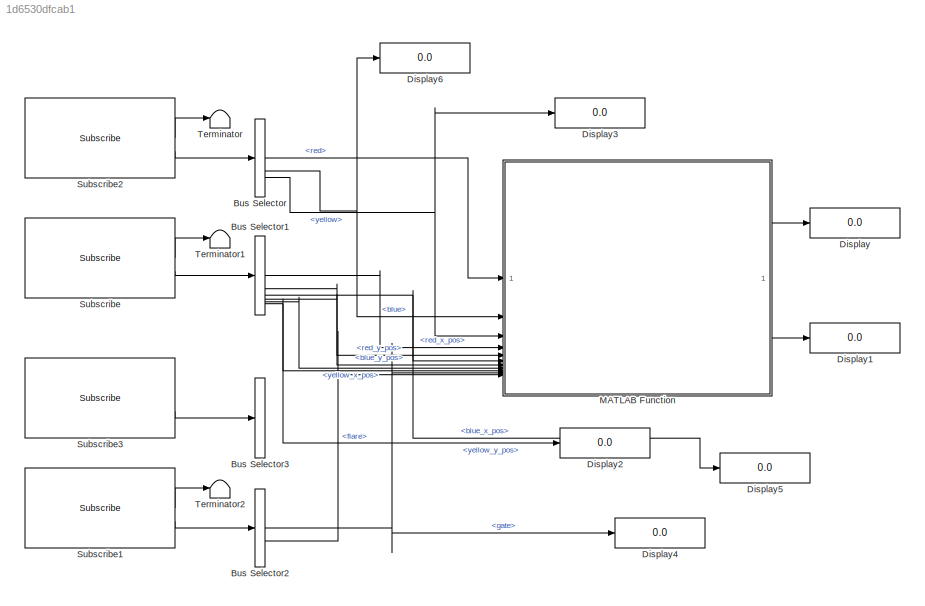
MODEL slx_1d6530dfcab1
KIND model
CONFIG AbsTol = auto
CONFIG EnableMultiTasking = off
CONFIG FixedStep = auto
CONFIG MaxStep = auto
CONFIG MinStep = auto
CONFIG RelTol = 1e-3
CONFIG SampleTimeConstraint = Unconstrained
CONFIG SolverName = VariableStepAuto
CONFIG StartTime = 0.0
CONFIG StopTime = inf
BLOCK [BusSelector] Bus Selector
  OutputSignals = red,blue,yellow
BLOCK [BusSelector] Bus Selector1
  OutputSignals = red_x_pos,red_y_pos,blue_x_pos,blue_y_pos,yellow_x_pos,yellow_y_pos
BLOCK [BusSelector] Bus Selector2
  OutputSignals = gate,flare
BLOCK [BusSelector] Bus Selector3
  OutputSignals = x_cmd,y_cmd,yaw,depth,x_button
BLOCK [Display] Display
  Decimation = 1
BLOCK [Display] Display1
  Decimation = 1
BLOCK [Display] Display2
  Decimation = 1
BLOCK [Display] Display3
  Decimation = 1
BLOCK [Display] Display4
  Decimation = 1
BLOCK [Display] Display5
  Decimation = 1
BLOCK [Display] Display6
  Decimation = 1
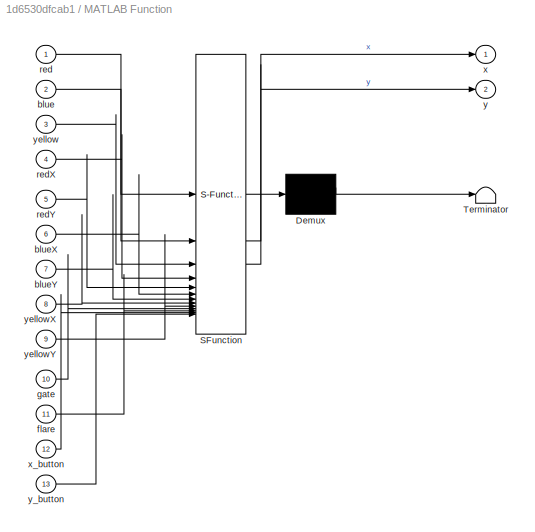
BLOCK [SubSystem] MATLAB Function
  ErrorFcn = Stateflow.Translate.translate
  PermitHierarchicalResolution = ExplicitOnly
  SFBlockType = MATLAB Function
  TreatAsAtomicUnit = on
BLOCK [Demux] MATLAB Function/ Demux 
  Outputs = 1
BLOCK [S-Function] MATLAB Function/ SFunction 
  EnableBusSupport = on
  FunctionName = sf_sfun
  PortCounts = [13 3]
  SFcnIsStateOwnerBlock = off
  SFunctionDeploymentMode = off
  Tag = Stateflow S-Function 2
BLOCK [Terminator] MATLAB Function/ Terminator 
BLOCK [Inport] MATLAB Function/blue
  Port = 2
BLOCK [Inport] MATLAB Function/blueX
  Port = 6
BLOCK [Inport] MATLAB Function/blueY
  Port = 7
BLOCK [Inport] MATLAB Function/flare
  Port = 11
BLOCK [Inport] MATLAB Function/gate
  Port = 10
BLOCK [Inport] MATLAB Function/red
BLOCK [Inport] MATLAB Function/redX
  Port = 4
BLOCK [Inport] MATLAB Function/redY
  Port = 5
BLOCK [Outport] MATLAB Function/x
BLOCK [Inport] MATLAB Function/x_button
  Port = 12
BLOCK [Outport] MATLAB Function/y
  Port = 2
BLOCK [Inport] MATLAB Function/y_button
  Port = 13
BLOCK [Inport] MATLAB Function/yellow
  Port = 3
BLOCK [Inport] MATLAB Function/yellowX
  Port = 8
BLOCK [Inport] MATLAB Function/yellowY
  Port = 9
BLOCK [Reference] Subscribe  REF=ros2lib/Subscribe  (lib defined in slx_3c1549211f48)
  SourceBlock = ros2lib/Subscribe
  SourceType = ROS2 Subscribe
BLOCK [Reference] Subscribe1  REF=ros2lib/Subscribe  (lib defined in slx_3c1549211f48)
  SourceBlock = ros2lib/Subscribe
  SourceType = ROS2 Subscribe
BLOCK [Reference] Subscribe2  REF=ros2lib/Subscribe  (lib defined in slx_3c1549211f48)
  SourceBlock = ros2lib/Subscribe
  SourceType = ROS2 Subscribe
BLOCK [Reference] Subscribe3  REF=ros2lib/Subscribe  (lib defined in slx_3c1549211f48)
  SourceBlock = ros2lib/Subscribe
  SourceType = ROS2 Subscribe
BLOCK [Terminator] Terminator
BLOCK [Terminator] Terminator1
BLOCK [Terminator] Terminator2
LINE Bus Selector1:1 -> MATLAB Function:4
LINE Bus Selector1:2 -> MATLAB Function:5
NET Bus Selector1:3 -> Display5:1, MATLAB Function:6
LINE Bus Selector1:4 -> MATLAB Function:7
LINE Bus Selector1:5 -> MATLAB Function:8
NET Bus Selector1:6 -> Display2:1, MATLAB Function:9
NET Bus Selector2:1 -> Display4:1, MATLAB Function:10
LINE Bus Selector2:2 -> MATLAB Function:11
LINE Bus Selector:1 -> MATLAB Function:1
NET Bus Selector:2 -> Display6:1, MATLAB Function:2
NET Bus Selector:3 -> Display3:1, MATLAB Function:3
LINE MATLAB Function:1 -> Display:1
LINE MATLAB Function:2 -> Display1:1
LINE Subscribe1:1 -> Terminator2:1
LINE Subscribe1:2 -> Bus Selector2:1
LINE Subscribe2:1 -> Terminator:1
LINE Subscribe2:2 -> Bus Selector:1
LINE Subscribe3:2 -> Bus Selector3:1
LINE Subscribe:1 -> Terminator1:1
LINE Subscribe:2 -> Bus Selector1:1
note: NET lines group one-source signal fan-out (src -> all destinations, sorted); 1:1 wires keep LINE
CHART MATLAB Function states=1 transitions=1
  STATE_LABEL 'eML_blk_kernel()'
  STATE_LABEL "SCRIPT:\nfunction [x, y] = fcn(red, blue, yellow, redX, redY, blueX, blueY, yellowX, yellowY, gate, flare, x_button, y_button)\n\nx = int32(0);\ny = int32(0);\n\n\n\npersistent currentColor;\n\nif isempty(currentColor)\n    currentColor = colorEnum.RED;\nend\n\nenumList = enumeration('colorEnum');\ncurrentIndex = find(enumList == currentColor);\ncurrentIndex = currentIndex(1);\n\nnextIndex = mod(currentIndex,3) + 1...<+1013ch>"
CHART  states=0 transitions=0
